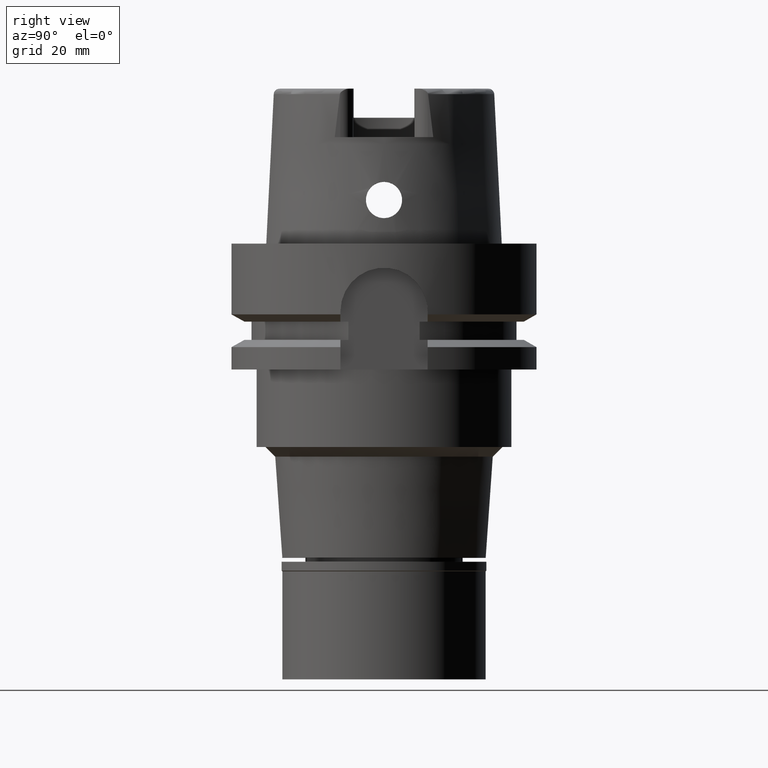
[diagram: clean part render]
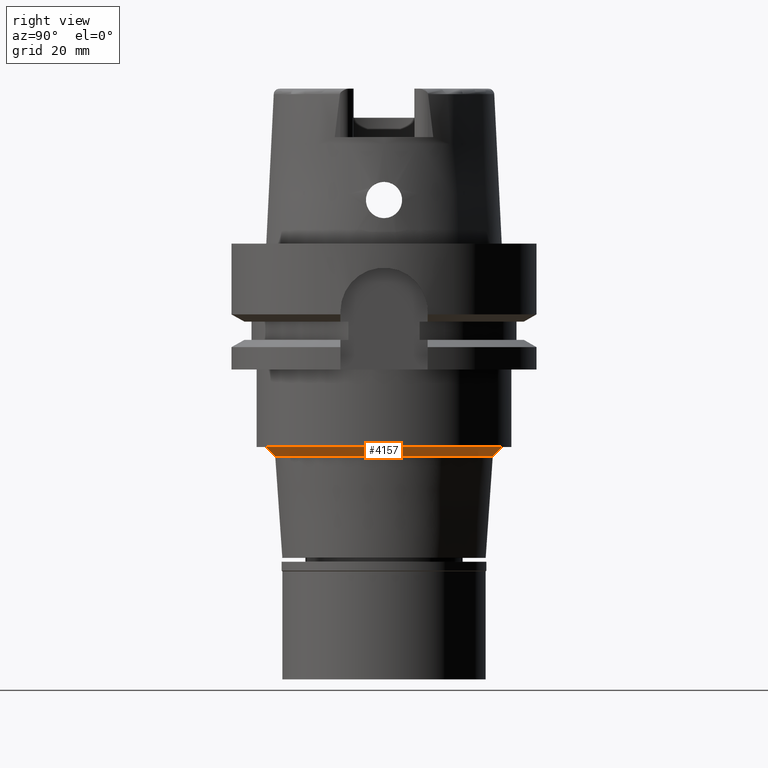
[diagram: same view with one face highlighted and labeled with its STEP entity id]
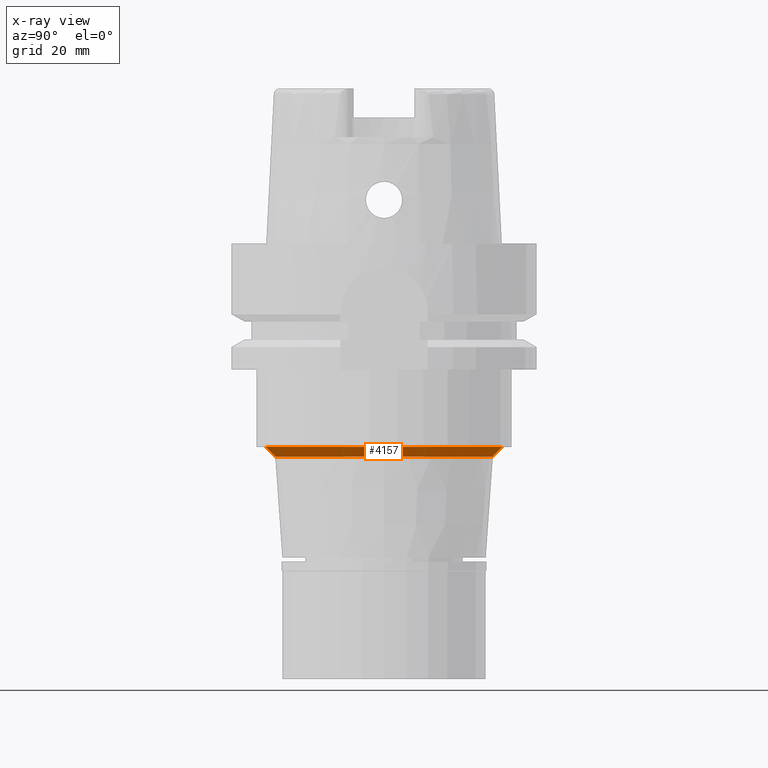
[diagram: x-ray of the same camera — body ghosted, the highlighted face saturated]
A machine part, right view. The second image highlights one B-rep face of the part: STEP entity #4157.
The next image is the same camera in x-ray: the body ghosted, the highlighted face saturated — about 0% of this face is hidden behind the body in this view.
In plain terms, the highlighted conical surface has half-angle 45 deg.
Its self-contained STEP definition (entity closure, byte-faithful):
#5 = CARTESIAN_POINT ( 'NONE',  ( 0.0000000000000000000, 22.46147036962000243, -44.00000000000000000 ) ) ;
#24 = VERTEX_POINT ( 'NONE', #1909 ) ;
#49 = CARTESIAN_POINT ( 'NONE',  ( 0.0000000000000000000, -22.46147036962000243, -44.00000000000000000 ) ) ;
#338 = DIRECTION ( 'NONE',  ( 0.0000000000000000000, 1.000000000000000000, 0.0000000000000000000 ) ) ;
#485 = AXIS2_PLACEMENT_3D ( 'NONE', #5425, #1586, #1530 ) ;
#635 = ORIENTED_EDGE ( 'NONE', *, *, #5309, .T. ) ;
#732 = CARTESIAN_POINT ( 'NONE',  ( 0.0000000000000000000, 0.0000000000000000000, -43.00000000000000000 ) ) ;
#753 = ORIENTED_EDGE ( 'NONE', *, *, #3789, .T. ) ;
#919 = VERTEX_POINT ( 'NONE', #5 ) ;
#966 = EDGE_CURVE ( 'NONE', #4977, #24, #3883, .T. ) ;
#1233 = CONICAL_SURFACE ( 'NONE', #1312, 23.46147036961999888, 0.7853981633972997312 ) ;
#1312 = AXIS2_PLACEMENT_3D ( 'NONE', #732, #4236, #338 ) ;
#1431 = DIRECTION ( 'NONE',  ( 0.0000000000000000000, 0.0000000000000000000, -1.000000000000000000 ) ) ;
#1438 = AXIS2_PLACEMENT_3D ( 'NONE', #3955, #1431, #1805 ) ;
#1530 = DIRECTION ( 'NONE',  ( 0.0000000000000000000, -1.000000000000000000, 0.0000000000000000000 ) ) ;
#1586 = DIRECTION ( 'NONE',  ( 0.0000000000000000000, 0.0000000000000000000, 1.000000000000000000 ) ) ;
#1685 = ORIENTED_EDGE ( 'NONE', *, *, #1962, .F. ) ;
#1805 = DIRECTION ( 'NONE',  ( 0.0000000000000000000, 1.000000000000000000, 0.0000000000000000000 ) ) ;
#1822 = CARTESIAN_POINT ( 'NONE',  ( 0.0000000000000000000, -24.46147036961999888, -42.00000000000000000 ) ) ;
#1850 = LINE ( 'NONE', #1822, #4403 ) ;
#1909 = CARTESIAN_POINT ( 'NONE',  ( 0.0000000000000000000, -24.46147036961999888, -42.00000000000000000 ) ) ;
#1958 = LINE ( 'NONE', #2468, #2883 ) ;
#1962 = EDGE_CURVE ( 'NONE', #4977, #919, #1958, .T. ) ;
#2439 = DIRECTION ( 'NONE',  ( 0.0000000000000000000, -0.7071067811865969777, -0.7071067811864980568 ) ) ;
#2468 = CARTESIAN_POINT ( 'NONE',  ( 0.0000000000000000000, 24.46147036961999888, -42.00000000000000000 ) ) ;
#2497 = FACE_OUTER_BOUND ( 'NONE', #2645, .T. ) ;
#2645 = EDGE_LOOP ( 'NONE', ( #3550, #635, #753, #1685 ) ) ;
#2883 = VECTOR ( 'NONE', #2439, 1000.000000000000000 ) ;
#3549 = DIRECTION ( 'NONE',  ( 0.0000000000000000000, 0.7071067811865969777, -0.7071067811864980568 ) ) ;
#3550 = ORIENTED_EDGE ( 'NONE', *, *, #966, .T. ) ;
#3789 = EDGE_CURVE ( 'NONE', #5527, #919, #3836, .T. ) ;
#3836 = CIRCLE ( 'NONE', #485, 22.46147036962000243 ) ;
#3883 = CIRCLE ( 'NONE', #1438, 24.46147036961999888 ) ;
#3955 = CARTESIAN_POINT ( 'NONE',  ( 0.0000000000000000000, 0.0000000000000000000, -42.00000000000000000 ) ) ;
#4157 = ADVANCED_FACE ( 'NONE', ( #2497 ), #1233, .T. ) ;
#4236 = DIRECTION ( 'NONE',  ( 0.0000000000000000000, 0.0000000000000000000, 1.000000000000000000 ) ) ;
#4277 = CARTESIAN_POINT ( 'NONE',  ( 0.0000000000000000000, 24.46147036961999888, -42.00000000000000000 ) ) ;
#4403 = VECTOR ( 'NONE', #3549, 1000.000000000000000 ) ;
#4977 = VERTEX_POINT ( 'NONE', #4277 ) ;
#5309 = EDGE_CURVE ( 'NONE', #24, #5527, #1850, .T. ) ;
#5425 = CARTESIAN_POINT ( 'NONE',  ( 0.0000000000000000000, 0.0000000000000000000, -44.00000000000000000 ) ) ;
#5527 = VERTEX_POINT ( 'NONE', #49 ) ;